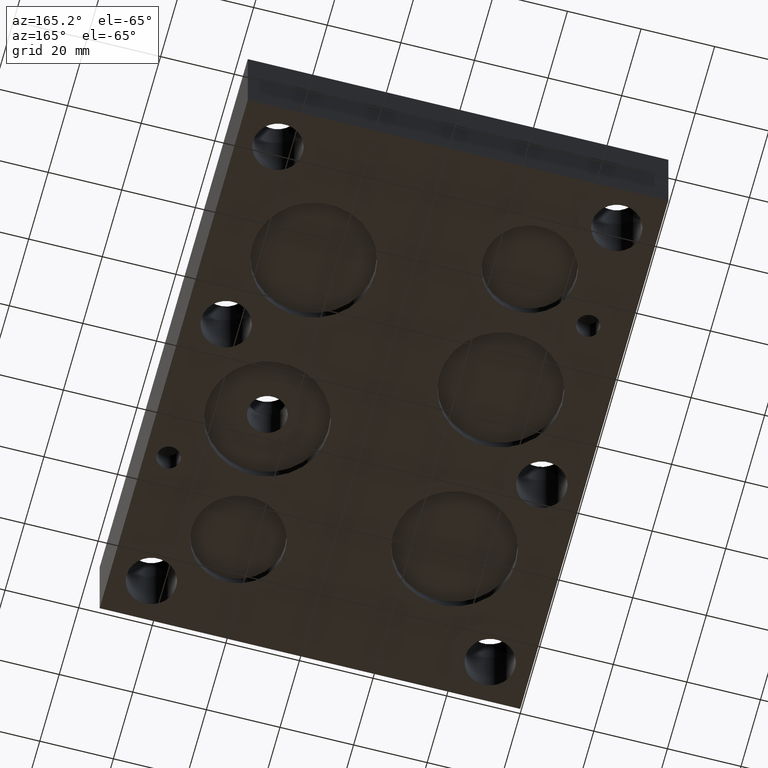
[diagram: clean part render]
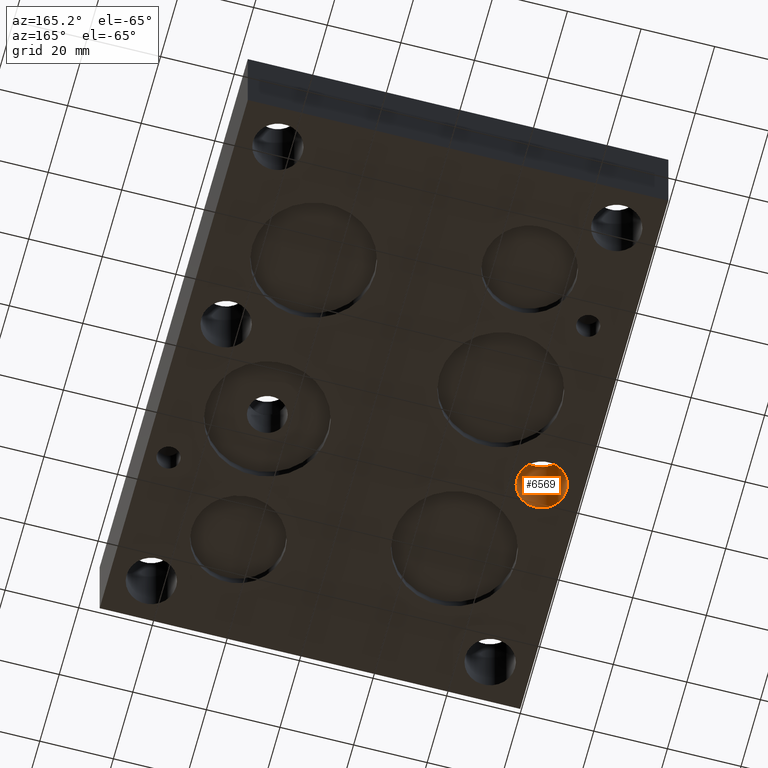
[diagram: same view with one face highlighted and labeled with its STEP entity id]
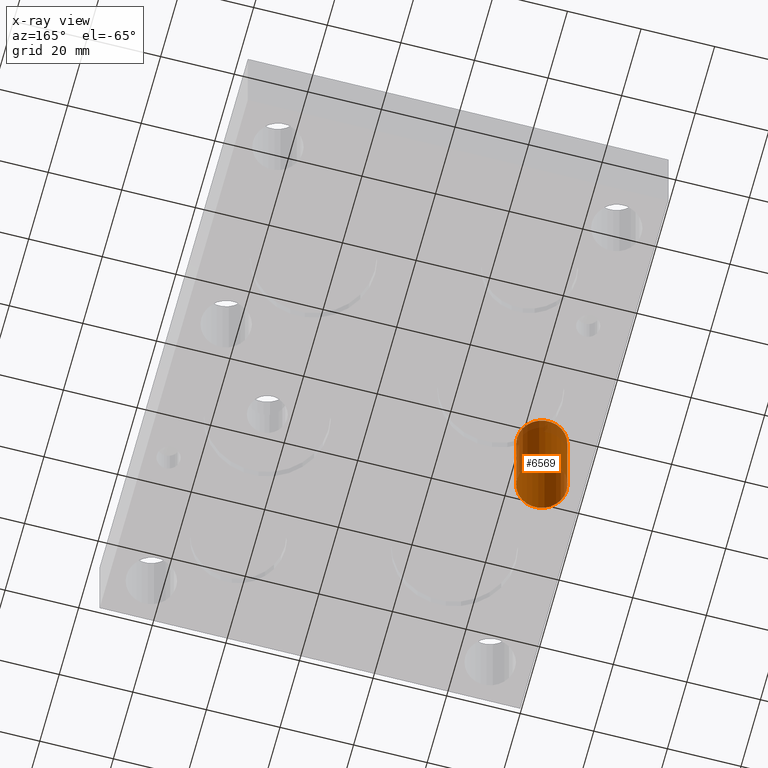
[diagram: x-ray of the same camera — body ghosted, the highlighted face saturated]
A machine part, auxiliary view. The second image highlights one B-rep face of the part: STEP entity #6569.
The next image is the same camera in x-ray: the body ghosted, the highlighted face saturated — about 13% of this face is hidden behind the body in this view.
In plain terms, the highlighted cylindrical surface (bore or boss wall) has radius 6.7437 mm, axis along (0, 0, -1).
Its self-contained STEP definition (entity closure, byte-faithful):
#27=CYLINDRICAL_SURFACE('',#6877,0.2655);
#38=CIRCLE('',#6818,0.2655);
#78=CIRCLE('',#6878,0.2655);
#79=CIRCLE('',#6879,0.2655);
#574=FACE_OUTER_BOUND('',#955,.T.);
#955=EDGE_LOOP('',(#5924,#5925,#5926,#5927,#5928));
#1653=LINE('',#11679,#2336);
#2336=VECTOR('',#8129,0.2655);
#3130=VERTEX_POINT('',#11564);
#3172=VERTEX_POINT('',#11678);
#3173=VERTEX_POINT('',#11680);
#4053=EDGE_CURVE('',#3130,#3130,#38,.T.);
#4105=EDGE_CURVE('',#3130,#3172,#1653,.T.);
#4106=EDGE_CURVE('',#3173,#3172,#78,.T.);
#4107=EDGE_CURVE('',#3172,#3173,#79,.T.);
#5924=ORIENTED_EDGE('',*,*,#4053,.F.);
#5925=ORIENTED_EDGE('',*,*,#4105,.T.);
#5926=ORIENTED_EDGE('',*,*,#4106,.F.);
#5927=ORIENTED_EDGE('',*,*,#4107,.F.);
#5928=ORIENTED_EDGE('',*,*,#4105,.F.);
#6569=ADVANCED_FACE('',(#574),#27,.F.);
#6818=AXIS2_PLACEMENT_3D('',#11565,#7997,#7998);
#6877=AXIS2_PLACEMENT_3D('',#11677,#8127,#8128);
#6878=AXIS2_PLACEMENT_3D('',#11681,#8130,#8131);
#6879=AXIS2_PLACEMENT_3D('',#11682,#8132,#8133);
#7997=DIRECTION('center_axis',(0.,0.,-1.));
#7998=DIRECTION('ref_axis',(1.,0.,0.));
#8127=DIRECTION('center_axis',(0.,0.,-1.));
#8128=DIRECTION('ref_axis',(1.,0.,0.));
#8129=DIRECTION('',(0.,0.,-1.));
#8130=DIRECTION('center_axis',(0.,0.,1.));
#8131=DIRECTION('ref_axis',(1.,0.,0.));
#8132=DIRECTION('center_axis',(0.,0.,1.));
#8133=DIRECTION('ref_axis',(1.,0.,0.));
#11564=CARTESIAN_POINT('',(0.1725,2.531,1.));
#11565=CARTESIAN_POINT('Origin',(0.438,2.531,1.));
#11677=CARTESIAN_POINT('Origin',(0.438,2.531,0.55));
#11678=CARTESIAN_POINT('',(0.1725,2.531,0.));
#11679=CARTESIAN_POINT('',(0.1725,2.531,0.55));
#11680=CARTESIAN_POINT('',(0.7035,2.531,0.));
#11681=CARTESIAN_POINT('Origin',(0.438,2.531,0.));
#11682=CARTESIAN_POINT('Origin',(0.438,2.531,0.));